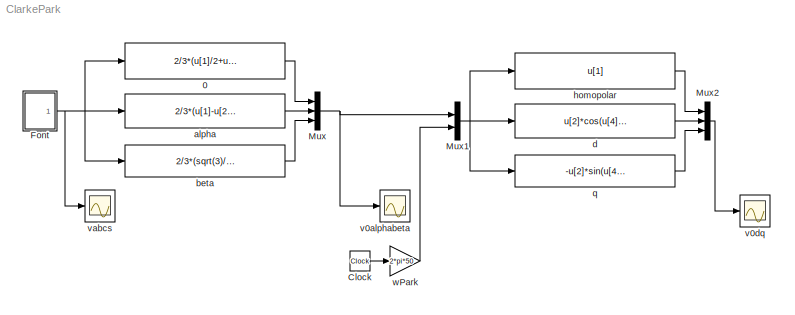
MODEL ClarkePark
KIND model
BLOCK [Fcn] 0
  Expr = 2/3*(u[1]/2+u[2]/2+u[3]/2)
BLOCK [Clock] Clock
  Decimation = 10
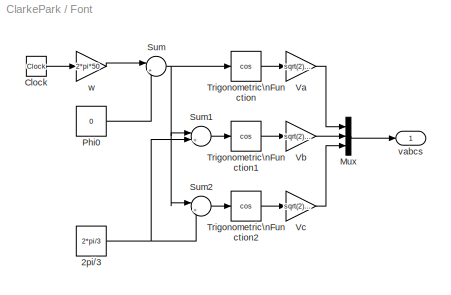
BLOCK [SubSystem] Font
  FunctionWithSeparateData = off
  MaskHideContents = off
  MinAlgLoopOccurrences = off
  Ports = [0, 1]
  RTWSystemCode = Auto
BLOCK [Constant] Font/2pi//3
  ConRadixGroup = Use specified scaling
  FramePeriod = inf
  OutDataType = sfix(16)
  OutDataTypeMode = Inherit from 'Constant value'
  OutScaling = 2^0
  SampleTime = inf
  SamplingMode = Sample based
  Value = 2*pi/3
  VectorParams1D = on
BLOCK [Clock] Font/Clock
  Decimation = 10
BLOCK [Mux] Font/Mux
  DisplayOption = bar
  Inputs = 3
  Ports = [3, 1]
BLOCK [Constant] Font/Phi0
  ConRadixGroup = Use specified scaling
  FramePeriod = inf
  OutDataType = sfix(16)
  OutDataTypeMode = Inherit from 'Constant value'
  OutScaling = 2^0
  SampleTime = inf
  SamplingMode = Sample based
  Value = 0
  VectorParams1D = on
BLOCK [Sum] Font/Sum
  IconShape = round
  InputSameDT = off
  Inputs = |++
  OutDataTypeMode = Inherit via internal rule
  Ports = [2, 1]
  SaturateOnIntegerOverflow = off
BLOCK [Sum] Font/Sum1
  IconShape = round
  InputSameDT = off
  Inputs = |+-
  OutDataTypeMode = Inherit via internal rule
  Ports = [2, 1]
  SaturateOnIntegerOverflow = off
BLOCK [Sum] Font/Sum2
  IconShape = round
  InputSameDT = off
  Inputs = |++
  OutDataTypeMode = Inherit via internal rule
  Ports = [2, 1]
  SaturateOnIntegerOverflow = off
BLOCK [Trigonometry] Font/Trigonometric\nFunction
  Operator = cos
  Ports = [1, 1]
BLOCK [Trigonometry] Font/Trigonometric\nFunction1
  Operator = cos
  Ports = [1, 1]
BLOCK [Trigonometry] Font/Trigonometric\nFunction2
  Operator = cos
  Ports = [1, 1]
BLOCK [Gain] Font/Va
  Gain = sqrt(2)/sqrt(3)*400
  OutDataTypeMode = Inherit via internal rule
  ParameterDataTypeMode = Inherit via internal rule
  SaturateOnIntegerOverflow = off
BLOCK [Gain] Font/Vb
  Gain = sqrt(2)/sqrt(3)*400
  OutDataTypeMode = Inherit via internal rule
  ParameterDataTypeMode = Inherit via internal rule
  SaturateOnIntegerOverflow = off
BLOCK [Gain] Font/Vc
  Gain = sqrt(2)/sqrt(3)*400
  OutDataTypeMode = Inherit via internal rule
  ParameterDataTypeMode = Inherit via internal rule
  SaturateOnIntegerOverflow = off
BLOCK [Outport] Font/vabcs
  IconDisplay = Port number
BLOCK [Gain] Font/w
  Gain = 2*pi*50
  OutDataTypeMode = Inherit via internal rule
  ParameterDataTypeMode = Inherit via internal rule
  SaturateOnIntegerOverflow = off
BLOCK [Mux] Mux
  DisplayOption = bar
  Inputs = 3
  Ports = [3, 1]
BLOCK [Mux] Mux1
  DisplayOption = bar
  Inputs = 2
  Ports = [2, 1]
BLOCK [Mux] Mux2
  DisplayOption = bar
  Inputs = 3
  Ports = [3, 1]
BLOCK [Fcn] alpha
  Expr = 2/3*(u[1]-u[2]/2-u[3]/2)
BLOCK [Fcn] beta
  Expr = 2/3*(sqrt(3)/2*u[2]-sqrt(3)/2*u[3])
BLOCK [Fcn] d
  Expr = u[2]*cos(u[4])+u[3]*sin(u[4])
BLOCK [Fcn] homopolar
  Expr = u[1]
BLOCK [Fcn] q
  Expr = -u[2]*sin(u[4])+u[3]*cos(u[4])
BLOCK [Scope] v0alphabeta
  DataFormat = StructureWithTime
  Floating = off
  LimitDataPoints = off
  NumInputPorts = 1
  Ports = [1]
  SampleTime = 0
  SaveName = ScopeData1
BLOCK [Scope] v0dq
  DataFormat = StructureWithTime
  Floating = off
  LimitDataPoints = off
  NumInputPorts = 1
  Ports = [1]
  SampleTime = 0
  SaveName = ScopeData2
BLOCK [Scope] vabcs
  DataFormat = StructureWithTime
  Floating = off
  LimitDataPoints = off
  NumInputPorts = 1
  Ports = [1]
  SampleTime = 0
BLOCK [Gain] wPark
  Gain = 2*pi*50
  OutDataTypeMode = Inherit via internal rule
  ParameterDataTypeMode = Inherit via internal rule
  SaturateOnIntegerOverflow = off
LINE 0:1 -> Mux:1
LINE Clock:1 -> wPark:1
NET Font/2pi//3:1 -> Font/Sum1:2, Font/Sum2:2
LINE Font/Clock:1 -> Font/w:1
LINE Font/Mux:1 -> Font/vabcs:1
LINE Font/Phi0:1 -> Font/Sum:2
LINE Font/Sum1:1 -> Font/Trigonometric\nFunction1:1
LINE Font/Sum2:1 -> Font/Trigonometric\nFunction2:1
NET Font/Sum:1 -> Font/Sum1:1, Font/Sum2:1, Font/Trigonometric\nFunction:1
LINE Font/Trigonometric\nFunction1:1 -> Font/Vb:1
LINE Font/Trigonometric\nFunction2:1 -> Font/Vc:1
LINE Font/Trigonometric\nFunction:1 -> Font/Va:1
LINE Font/Va:1 -> Font/Mux:1
LINE Font/Vb:1 -> Font/Mux:2
LINE Font/Vc:1 -> Font/Mux:3
LINE Font/w:1 -> Font/Sum:1
NET Font:1 -> 0:1, alpha:1, beta:1, vabcs:1
NET Mux1:1 -> d:1, homopolar:1, q:1
LINE Mux2:1 -> v0dq:1
NET Mux:1 -> Mux1:1, v0alphabeta:1
LINE alpha:1 -> Mux:2
LINE beta:1 -> Mux:3
LINE d:1 -> Mux2:2
LINE homopolar:1 -> Mux2:1
LINE q:1 -> Mux2:3
LINE wPark:1 -> Mux1:2
note: NET lines group one-source signal fan-out (src -> all destinations, sorted); 1:1 wires keep LINE
